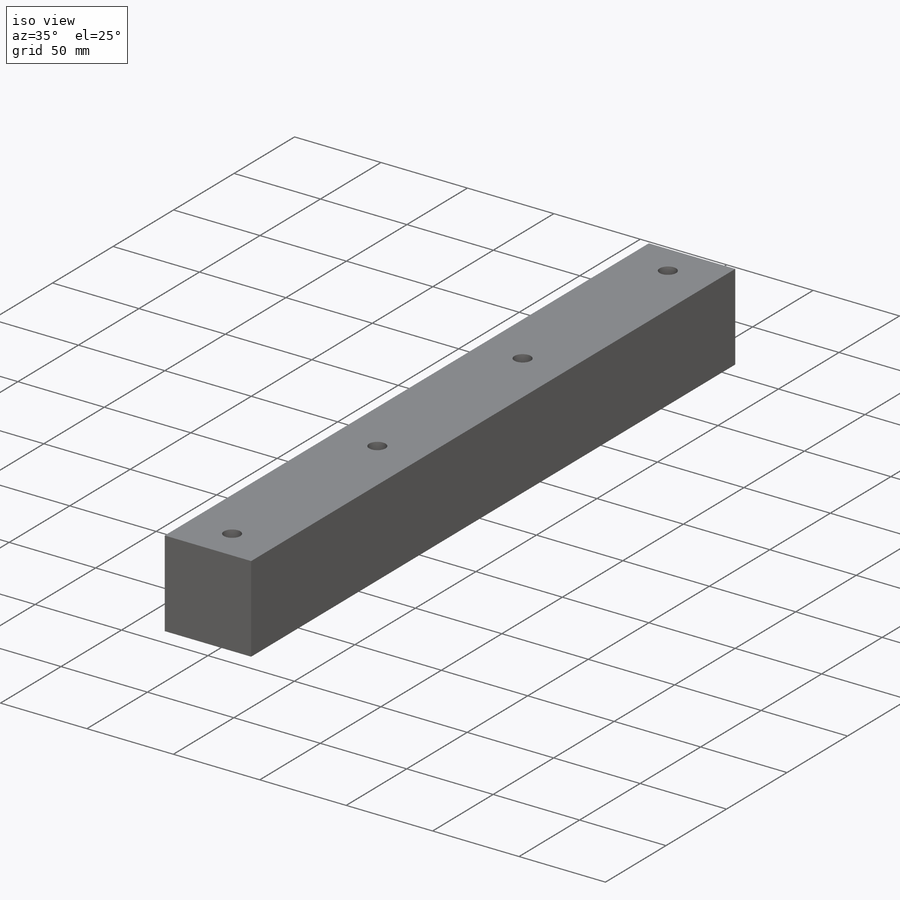
[diagram: iso view]
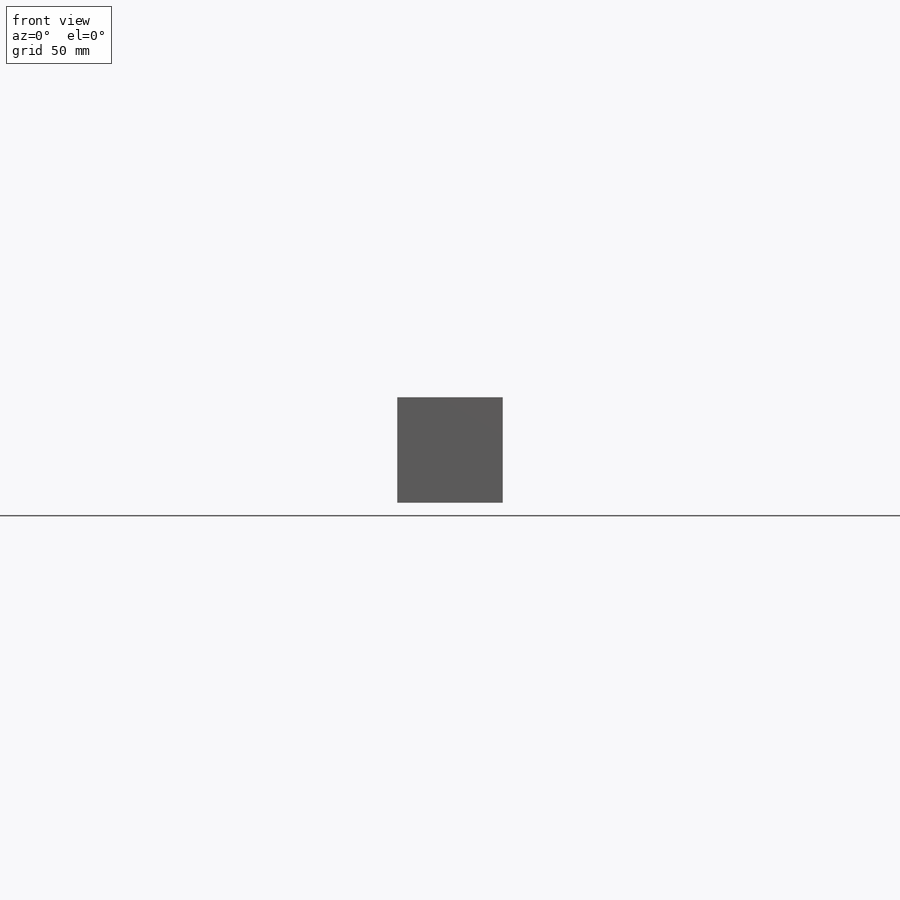
[diagram: front view]
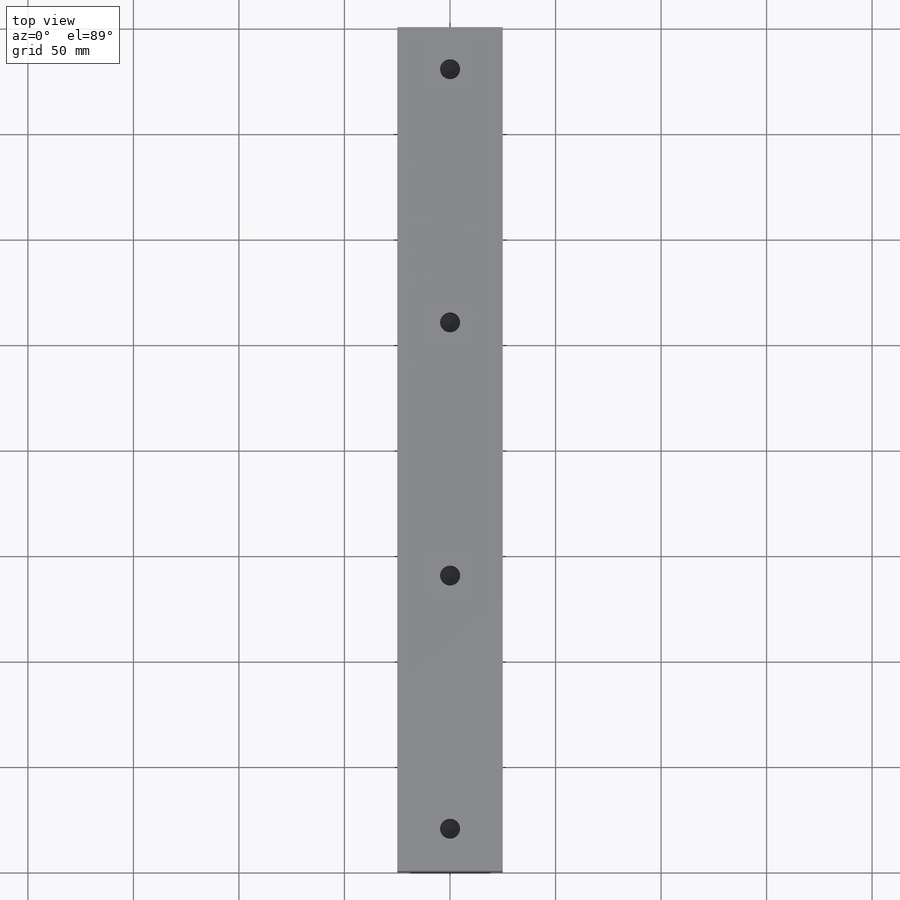
[diagram: top view]
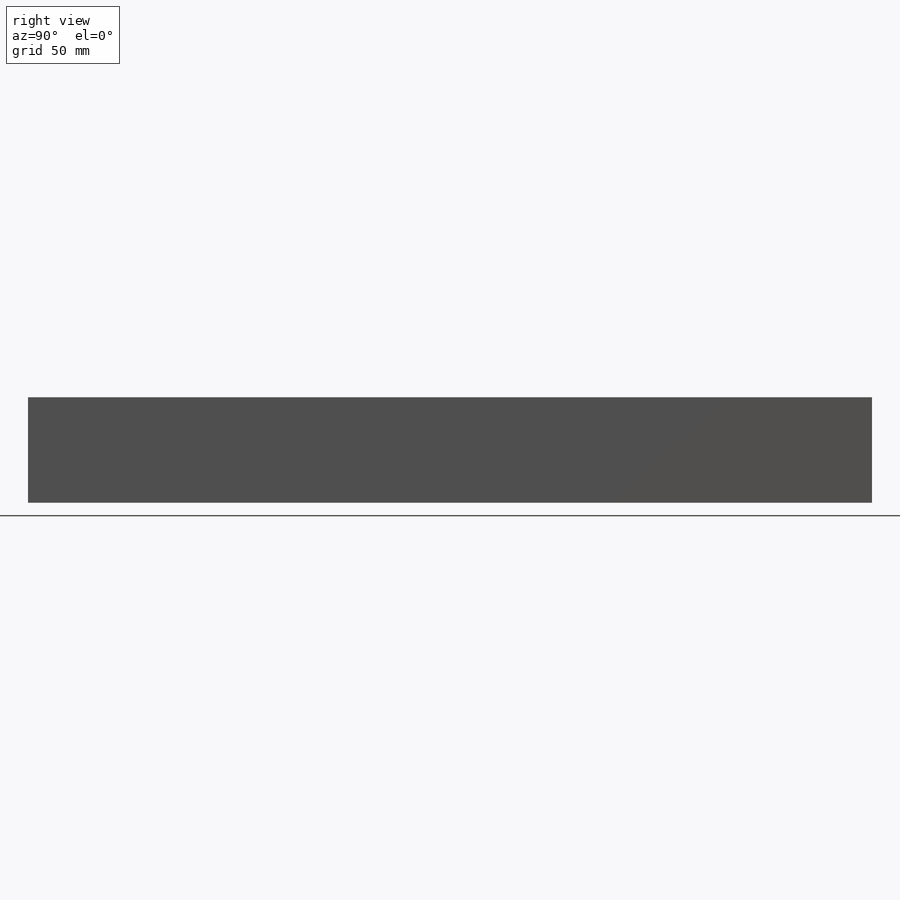
[diagram: right view]
SOLIDWORKS PART (.sldprt)
format: sldprt  version: not decoded by parser v0  size: 310,784 bytes
history: native  units: mm
features: plane x3, sketch x3, material x1, extrude x1, hole x1, pattern_linear x1 (+10 scaffold rows collapsed)
feature tree (20):
  scaffold x10  (default folders/planes/origin — collapsed)
  material  "Material <nicht festgelegt>"
  plane  "Ebene vorne"
  plane  "Ebene oben"
  plane  "Ebene rechts"
  sketch  "Skizze1"  dims[D1=50.0mm D2=400.0mm]
  extrude  "Aufsatz-Linear austragen1"  Depth=50mm
  hole  "Ø9.5 (9.5) Durchmesser Bohrung1"  Diameter=9.5mm Depth=20mm
  sketch  "Skizze3"  dims[D1=20.0mm]
  sketch  "Skizze2"  dims[hole-wizard template sketch: 46 standard entries collapsed; hole parameters kept: c15.Bohrerdurchmesser=9.5mm c15.Bohrungstiefe=20.0mm c15.D3=~14.816244mm c15.Spitzenwinkel=118.0deg]
  pattern_linear  "Lineares Muster1"  Count1=4 Count2=1 Spacing1=120mm Spacing2=50mm
decode coverage: 6 of 6 modeling features carry decoded parameters
note: ~ marks probable driven/reference dimensions
note: suppression state not decoded; provenance and decode notes live in map.json
